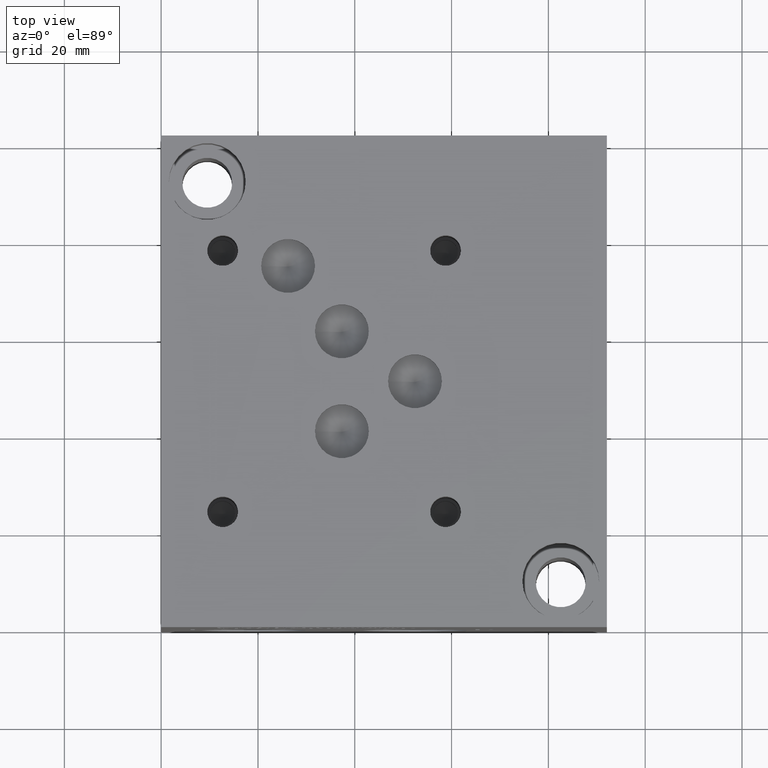
[diagram: clean part render]
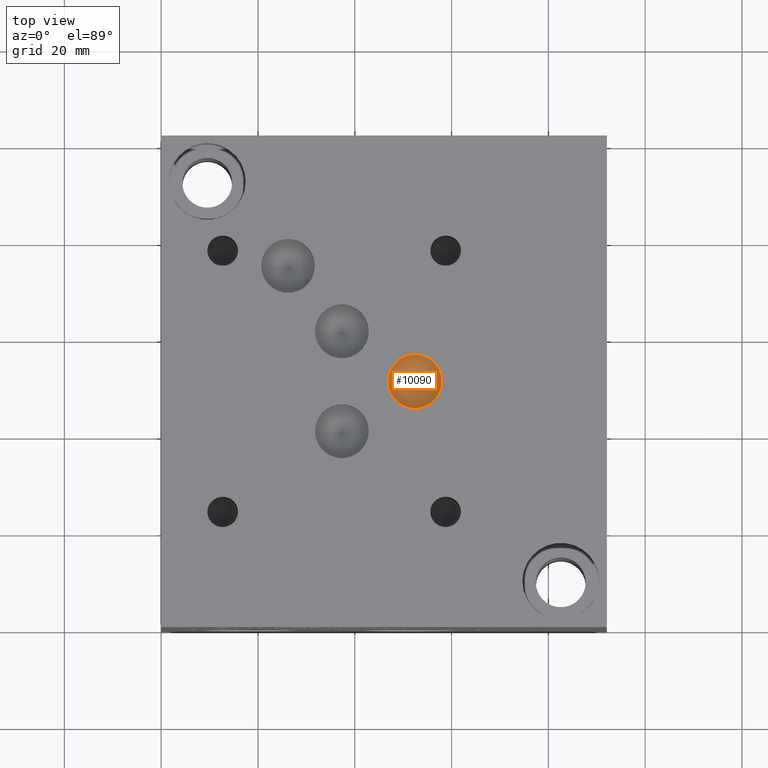
[diagram: same view with one face highlighted and labeled with its STEP entity id]
A machine part, top view. The second image highlights one B-rep face of the part: STEP entity #10090.
In plain terms, the highlighted conical surface has half-angle 60 deg.
Its self-contained STEP definition (entity closure, byte-faithful):
#1491=FACE_OUTER_BOUND('',#2064,.T.);
#2064=EDGE_LOOP('',(#9433,#9434,#9435,#9436));
#3054=LINE('',#17240,#4022);
#4022=VECTOR('',#12437,2.7813);
#4131=CIRCLE('',#10561,5.5626);
#4132=CIRCLE('',#10562,5.5626);
#5365=VERTEX_POINT('',#17236);
#5366=VERTEX_POINT('',#17237);
#5367=VERTEX_POINT('',#17239);
#6743=EDGE_CURVE('',#5365,#5366,#4131,.T.);
#6744=EDGE_CURVE('',#5366,#5367,#3054,.T.);
#6745=EDGE_CURVE('',#5366,#5365,#4132,.T.);
#9433=ORIENTED_EDGE('',*,*,#6743,.T.);
#9434=ORIENTED_EDGE('',*,*,#6744,.T.);
#9435=ORIENTED_EDGE('',*,*,#6744,.F.);
#9436=ORIENTED_EDGE('',*,*,#6745,.T.);
#9598=CONICAL_SURFACE('',#10560,2.7813,1.0471975511966);
#10090=ADVANCED_FACE('',(#1491),#9598,.F.);
#10560=AXIS2_PLACEMENT_3D('',#17235,#12433,#12434);
#10561=AXIS2_PLACEMENT_3D('',#17238,#12435,#12436);
#10562=AXIS2_PLACEMENT_3D('',#17241,#12438,#12439);
#12433=DIRECTION('center_axis',(0.,0.,1.));
#12434=DIRECTION('ref_axis',(1.,0.,0.));
#12435=DIRECTION('center_axis',(0.,0.,1.));
#12436=DIRECTION('ref_axis',(1.,0.,0.));
#12437=DIRECTION('',(0.866025403784439,1.06057523872491E-16,-0.5));
#12438=DIRECTION('center_axis',(0.,0.,1.));
#12439=DIRECTION('ref_axis',(1.,0.,0.));
#17235=CARTESIAN_POINT('Origin',(52.4256,50.8,58.6826456963029));
#17236=CARTESIAN_POINT('',(57.9882,50.8,60.28843));
#17237=CARTESIAN_POINT('',(46.863,50.8,60.28843));
#17238=CARTESIAN_POINT('Origin',(52.4256,50.8,60.28843));
#17239=CARTESIAN_POINT('',(52.4256,50.8,57.0768613926058));
#17240=CARTESIAN_POINT('',(49.6443,50.8,58.6826456963029));
#17241=CARTESIAN_POINT('Origin',(52.4256,50.8,60.28843));